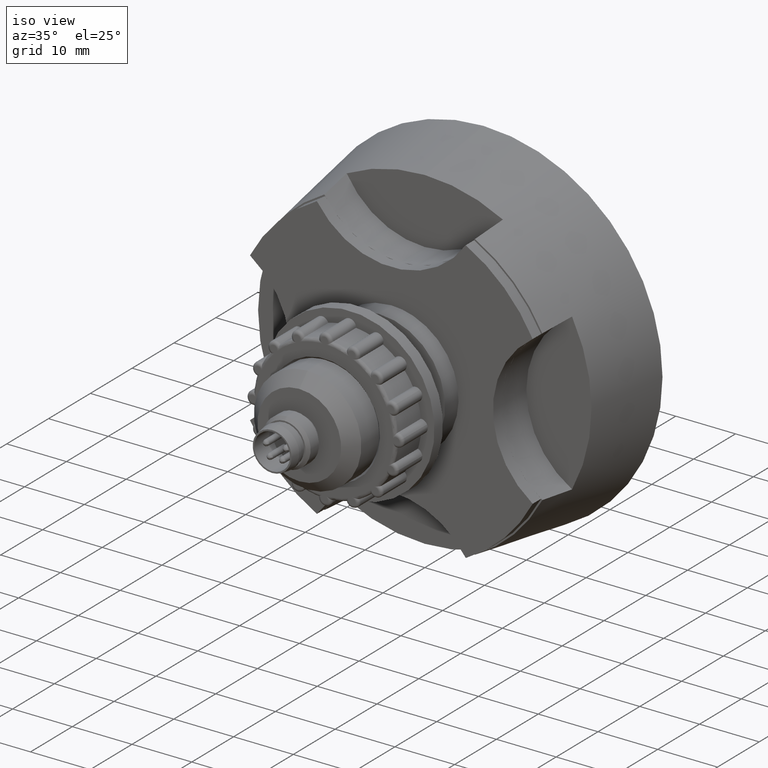
[diagram: clean part render]
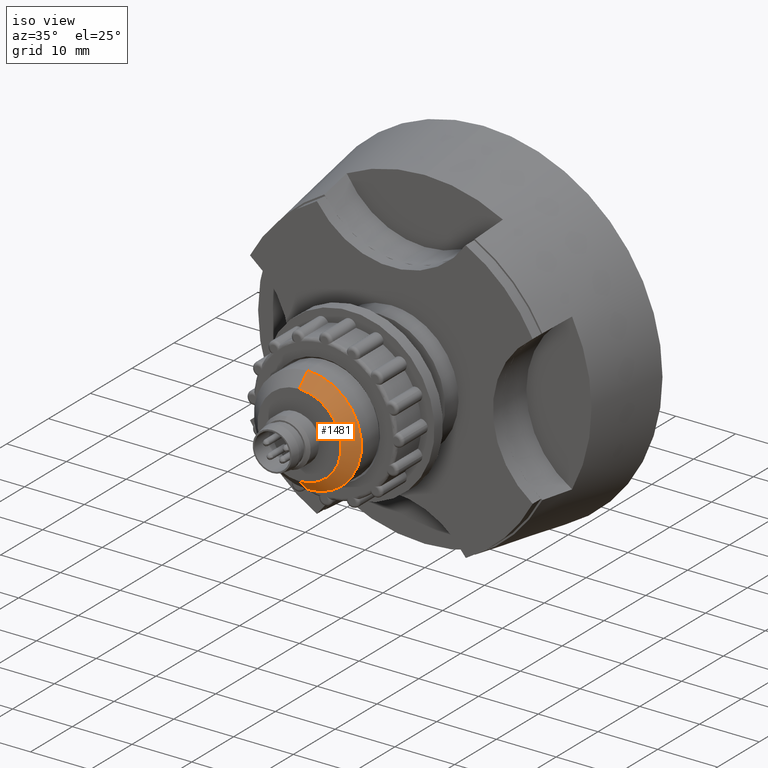
[diagram: same view with one face highlighted and labeled with its STEP entity id]
A machine part, iso view. The second image highlights one B-rep face of the part: STEP entity #1481.
In plain terms, the highlighted conical surface has half-angle 45 deg.
Its self-contained STEP definition (entity closure, byte-faithful):
#27 = CARTESIAN_POINT ( 'NONE',  ( 0.0000000000000000000, 2.000000000000001776, 9.000000000000007105 ) ) ;
#209 = DIRECTION ( 'NONE',  ( 0.0000000000000000000, 0.0000000000000000000, -1.000000000000000000 ) ) ;
#346 = VECTOR ( 'NONE', #3847, 999.9999999999998863 ) ;
#484 = CARTESIAN_POINT ( 'NONE',  ( 0.0000000000000000000, -4.336808689942017736E-16, 0.0000000000000000000 ) ) ;
#563 = CARTESIAN_POINT ( 'NONE',  ( 1.102182119232618897E-15, 2.000000000000001776, -9.000000000000007105 ) ) ;
#672 = VERTEX_POINT ( 'NONE', #1218 ) ;
#743 = CARTESIAN_POINT ( 'NONE',  ( 0.0000000000000000000, 2.000000000000001776, 0.0000000000000000000 ) ) ;
#921 = ORIENTED_EDGE ( 'NONE', *, *, #4668, .T. ) ;
#1218 = CARTESIAN_POINT ( 'NONE',  ( 1.102182119232618897E-15, 2.000000000000001776, -9.000000000000007105 ) ) ;
#1460 = CIRCLE ( 'NONE', #5428, 6.999999999999980460 ) ;
#1481 = ADVANCED_FACE ( 'NONE', ( #5483 ), #6572, .T. ) ;
#1497 = EDGE_LOOP ( 'NONE', ( #2253, #921, #4611, #1906 ) ) ;
#1798 = DIRECTION ( 'NONE',  ( 0.0000000000000000000, 1.000000000000000000, 0.0000000000000000000 ) ) ;
#1906 = ORIENTED_EDGE ( 'NONE', *, *, #5404, .F. ) ;
#2033 = AXIS2_PLACEMENT_3D ( 'NONE', #6210, #6776, #5118 ) ;
#2253 = ORIENTED_EDGE ( 'NONE', *, *, #5380, .T. ) ;
#2293 = CARTESIAN_POINT ( 'NONE',  ( 9.797174393178819741E-16, -4.336808689942017736E-16, -6.999999999999980460 ) ) ;
#2693 = VERTEX_POINT ( 'NONE', #2293 ) ;
#2737 = EDGE_CURVE ( 'NONE', #3194, #672, #2998, .T. ) ;
#2998 = CIRCLE ( 'NONE', #4588, 9.000000000000007105 ) ;
#3194 = VERTEX_POINT ( 'NONE', #4125 ) ;
#3278 = DIRECTION ( 'NONE',  ( 8.659560562354989558E-17, 0.7071067811865431318, -0.7071067811865520136 ) ) ;
#3702 = CARTESIAN_POINT ( 'NONE',  ( 0.0000000000000000000, -4.336808689942017736E-16, 6.999999999999980460 ) ) ;
#3847 = DIRECTION ( 'NONE',  ( 0.0000000000000000000, 0.7071067811865431318, 0.7071067811865520136 ) ) ;
#4125 = CARTESIAN_POINT ( 'NONE',  ( 0.0000000000000000000, 2.000000000000001776, 9.000000000000007105 ) ) ;
#4588 = AXIS2_PLACEMENT_3D ( 'NONE', #743, #1798, #209 ) ;
#4611 = ORIENTED_EDGE ( 'NONE', *, *, #2737, .F. ) ;
#4668 = EDGE_CURVE ( 'NONE', #2693, #672, #6011, .T. ) ;
#4684 = VERTEX_POINT ( 'NONE', #3702 ) ;
#5118 = DIRECTION ( 'NONE',  ( 0.0000000000000000000, 0.0000000000000000000, 1.000000000000000000 ) ) ;
#5380 = EDGE_CURVE ( 'NONE', #4684, #2693, #1460, .T. ) ;
#5404 = EDGE_CURVE ( 'NONE', #4684, #3194, #5411, .T. ) ;
#5411 = LINE ( 'NONE', #27, #346 ) ;
#5428 = AXIS2_PLACEMENT_3D ( 'NONE', #484, #6469, #6954 ) ;
#5483 = FACE_OUTER_BOUND ( 'NONE', #1497, .T. ) ;
#5532 = VECTOR ( 'NONE', #3278, 999.9999999999998863 ) ;
#6011 = LINE ( 'NONE', #563, #5532 ) ;
#6210 = CARTESIAN_POINT ( 'NONE',  ( 0.0000000000000000000, 2.000000000000001776, 0.0000000000000000000 ) ) ;
#6469 = DIRECTION ( 'NONE',  ( -0.0000000000000000000, 1.000000000000000000, 0.0000000000000000000 ) ) ;
#6572 = CONICAL_SURFACE ( 'NONE', #2033, 9.000000000000007105, 0.7853981633974547183 ) ;
#6776 = DIRECTION ( 'NONE',  ( -0.0000000000000000000, 1.000000000000000000, 0.0000000000000000000 ) ) ;
#6954 = DIRECTION ( 'NONE',  ( 0.0000000000000000000, 0.0000000000000000000, 1.000000000000000000 ) ) ;